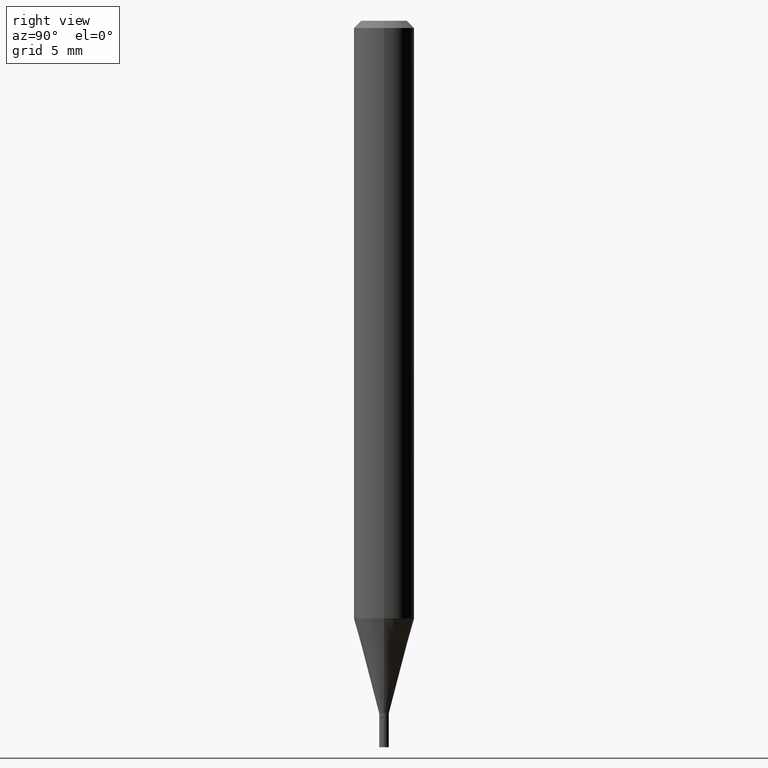
[diagram: clean part render]
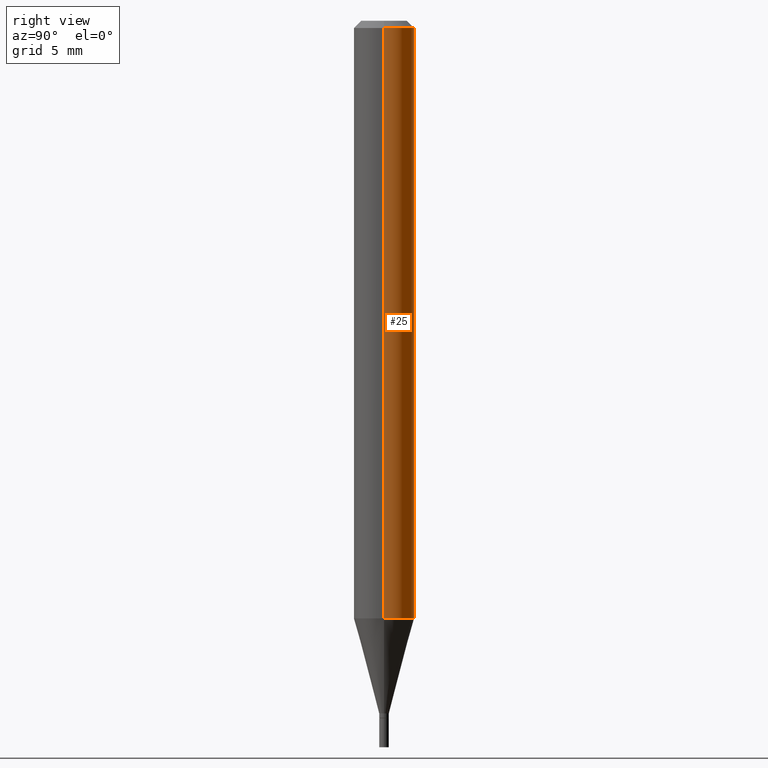
[diagram: same view with one face highlighted and labeled with its STEP entity id]
A machine part, right view. The second image highlights one B-rep face of the part: STEP entity #25.
In plain terms, the highlighted cylindrical surface (edge-blend (fillet) strip) has radius 1.5875 mm, axis along (-0, 0, 1).
Its self-contained STEP definition (entity closure, byte-faithful):
#1 = VERTEX_POINT ( 'NONE', #126 ) ;
#6 = CARTESIAN_POINT ( 'NONE',  ( 0.06250000000000000000, -4.364351673553916694E-16, 3.047610484872459871E-30 ) ) ;
#12 = LINE ( 'NONE', #6, #167 ) ;
#16 = DIRECTION ( 'NONE',  ( -2.445468806185136597E-29, 3.491481338843145583E-15, 1.000000000000000000 ) ) ;
#20 = CARTESIAN_POINT ( 'NONE',  ( 0.06250000000000000000, -4.888073874380388472E-16, -0.01499999999999999944 ) ) ;
#22 = CIRCLE ( 'NONE', #223, 0.06250000000000000000 ) ;
#25 = ADVANCED_FACE ( 'NONE', ( #345 ), #448, .T. ) ;
#34 = CIRCLE ( 'NONE', #232, 0.06250000000000000000 ) ;
#68 = VERTEX_POINT ( 'NONE', #20 ) ;
#90 = CARTESIAN_POINT ( 'NONE',  ( 3.668203209277705088E-31, -5.237222008264718399E-17, -0.01499999999999999944 ) ) ;
#102 = CARTESIAN_POINT ( 'NONE',  ( -0.06249999999999999306, -3.864633852807972425E-15, -1.234067332602634348 ) ) ;
#110 = VECTOR ( 'NONE', #450, 39.37007874015748143 ) ;
#121 = DIRECTION ( 'NONE',  ( 1.000000000000000000, -6.982962677686266711E-15, 0.000000000000000000 ) ) ;
#126 = CARTESIAN_POINT ( 'NONE',  ( 0.06249999999999999306, -4.745158230013426710E-15, -1.234067332602634348 ) ) ;
#140 = LINE ( 'NONE', #457, #110 ) ;
#160 = DIRECTION ( 'NONE',  ( -2.445468806185136597E-29, 3.491481338843145583E-15, 1.000000000000000000 ) ) ;
#163 = CARTESIAN_POINT ( 'NONE',  ( 0.000000000000000000, 0.000000000000000000, 0.000000000000000000 ) ) ;
#167 = VECTOR ( 'NONE', #301, 39.37007874015748143 ) ;
#187 = ORIENTED_EDGE ( 'NONE', *, *, #286, .T. ) ;
#193 = ORIENTED_EDGE ( 'NONE', *, *, #281, .F. ) ;
#200 = CARTESIAN_POINT ( 'NONE',  ( 3.017873166611840083E-29, -4.308723062658035041E-15, -1.234067332602634348 ) ) ;
#207 = DIRECTION ( 'NONE',  ( -2.445468806185136597E-29, 3.491481338843145583E-15, 1.000000000000000000 ) ) ;
#223 = AXIS2_PLACEMENT_3D ( 'NONE', #200, #160, #310 ) ;
#232 = AXIS2_PLACEMENT_3D ( 'NONE', #90, #16, #121 ) ;
#243 = CARTESIAN_POINT ( 'NONE',  ( -0.06250000000000000000, -1.736458431520278641E-15, -0.01499999999999999944 ) ) ;
#281 = EDGE_CURVE ( 'NONE', #68, #443, #34, .T. ) ;
#286 = EDGE_CURVE ( 'NONE', #1, #430, #22, .T. ) ;
#301 = DIRECTION ( 'NONE',  ( -2.445468806185136877E-29, 3.491481338843145188E-15, 1.000000000000000000 ) ) ;
#307 = EDGE_LOOP ( 'NONE', ( #187, #380, #193, #408 ) ) ;
#310 = DIRECTION ( 'NONE',  ( 1.000000000000000000, -6.982962677686262766E-15, 0.000000000000000000 ) ) ;
#321 = EDGE_CURVE ( 'NONE', #1, #68, #12, .T. ) ;
#340 = DIRECTION ( 'NONE',  ( 1.000000000000000000, -6.982962677686266711E-15, 4.876176775795935793E-29 ) ) ;
#345 = FACE_OUTER_BOUND ( 'NONE', #307, .T. ) ;
#371 = AXIS2_PLACEMENT_3D ( 'NONE', #163, #207, #340 ) ;
#380 = ORIENTED_EDGE ( 'NONE', *, *, #427, .T. ) ;
#408 = ORIENTED_EDGE ( 'NONE', *, *, #321, .F. ) ;
#427 = EDGE_CURVE ( 'NONE', #430, #443, #140, .T. ) ;
#430 = VERTEX_POINT ( 'NONE', #102 ) ;
#443 = VERTEX_POINT ( 'NONE', #243 ) ;
#448 = CYLINDRICAL_SURFACE ( 'NONE', #371, 0.06250000000000000000 ) ;
#450 = DIRECTION ( 'NONE',  ( -2.445468806185136877E-29, 3.491481338843145188E-15, 1.000000000000000000 ) ) ;
#457 = CARTESIAN_POINT ( 'NONE',  ( -0.06250000000000000000, 4.440892098500626162E-16, -3.074334431409316114E-30 ) ) ;